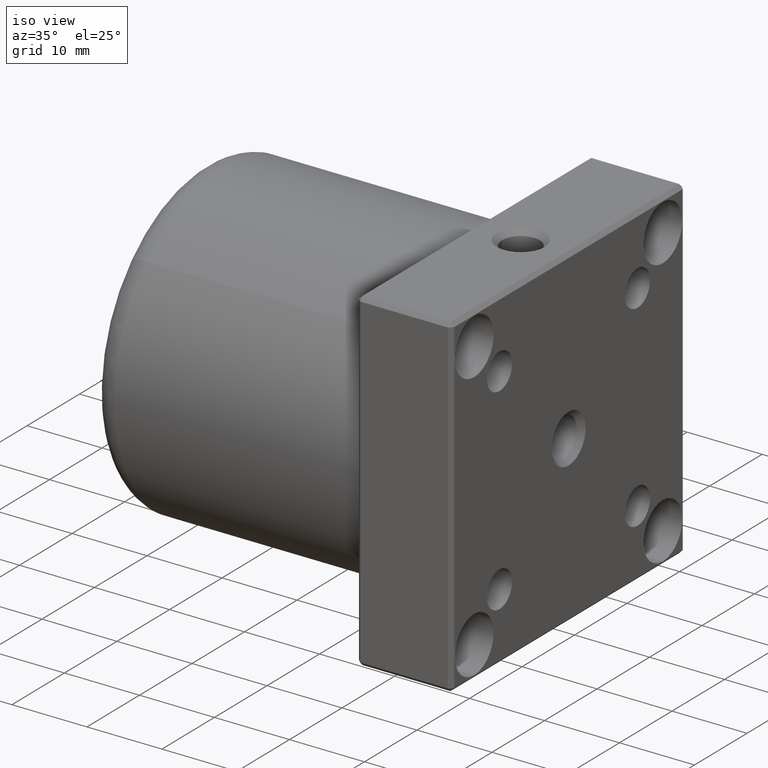
[diagram: clean part render]
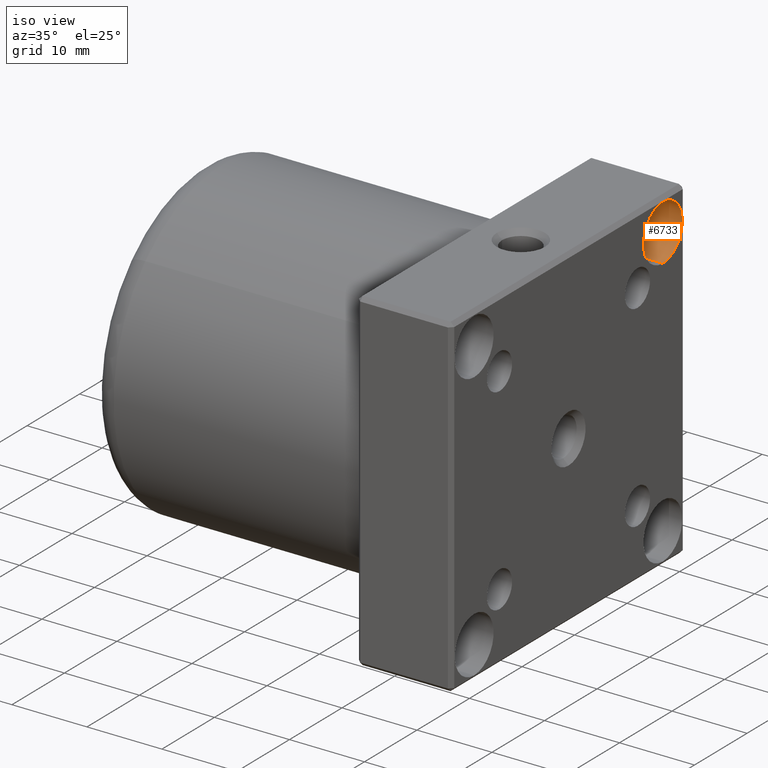
[diagram: same view with one face highlighted and labeled with its STEP entity id]
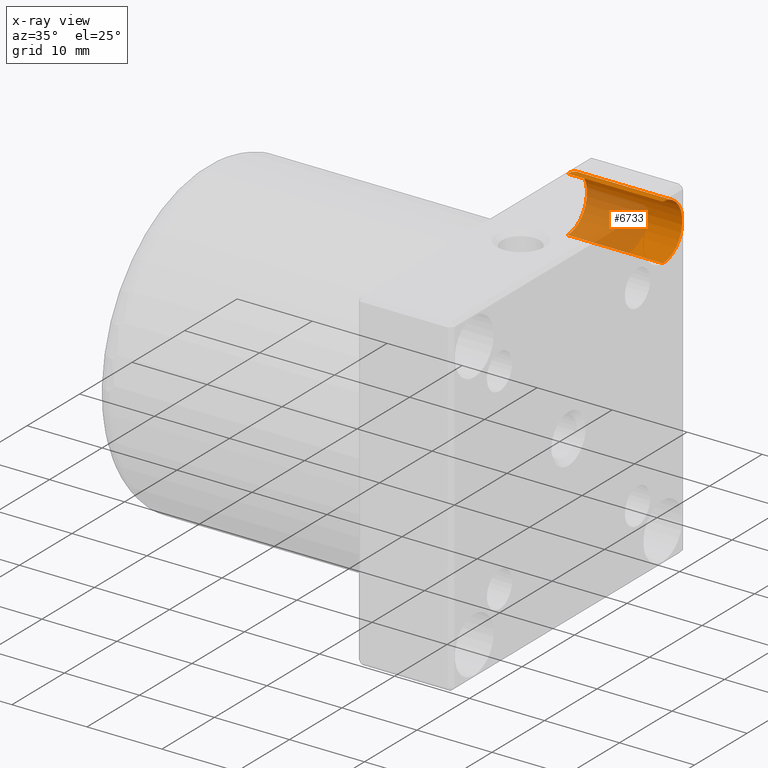
[diagram: x-ray of the same camera — body ghosted, the highlighted face saturated]
A machine part, iso view. The second image highlights one B-rep face of the part: STEP entity #6733.
The next image is the same camera in x-ray: the body ghosted, the highlighted face saturated — about 51% of this face is hidden behind the body in this view.
In plain terms, the highlighted cylindrical surface (edge-blend (fillet) strip) has radius 3.7 mm, axis along (-1, 0, -0).
Its self-contained STEP definition (entity closure, byte-faithful):
#88 = CARTESIAN_POINT ( 'NONE',  ( 36.50000000000000700, 17.96051224213820400, 14.26051224213839700 ) ) ;
#182 = VECTOR ( 'NONE', #305, 1000.000000000000000 ) ;
#305 = DIRECTION ( 'NONE',  ( -1.000000000000000000, 1.036413853914698600E-017, -5.453505792938099400E-017 ) ) ;
#468 = EDGE_CURVE ( 'NONE', #1265, #3286, #6490, .T. ) ;
#1040 = DIRECTION ( 'NONE',  ( -1.000000000000000000, 1.036413853914698600E-017, -5.453505792938099400E-017 ) ) ;
#1102 = CYLINDRICAL_SURFACE ( 'NONE', #9135, 3.700000000000002000 ) ;
#1136 = CIRCLE ( 'NONE', #10945, 3.700000000000002000 ) ;
#1265 = VERTEX_POINT ( 'NONE', #4453 ) ;
#1509 = VECTOR ( 'NONE', #1040, 1000.000000000000000 ) ;
#2001 = CARTESIAN_POINT ( 'NONE',  ( 36.50000000000000700, 17.96051224213820400, 21.66051224213839900 ) ) ;
#2306 = VERTEX_POINT ( 'NONE', #88 ) ;
#2364 = LINE ( 'NONE', #3172, #182 ) ;
#2599 = DIRECTION ( 'NONE',  ( 0.0000000000000000000, 0.0000000000000000000, 1.000000000000000000 ) ) ;
#2897 = CARTESIAN_POINT ( 'NONE',  ( 36.50000000000000700, 17.96051224213820400, 21.66051224213839900 ) ) ;
#3172 = CARTESIAN_POINT ( 'NONE',  ( 36.50000000000000700, 17.96051224213820400, 14.26051224213839700 ) ) ;
#3286 = VERTEX_POINT ( 'NONE', #2001 ) ;
#4177 = EDGE_LOOP ( 'NONE', ( #8069, #8595, #8886, #10409 ) ) ;
#4227 = CIRCLE ( 'NONE', #7353, 3.700000000000002000 ) ;
#4357 = EDGE_CURVE ( 'NONE', #3286, #2306, #1136, .T. ) ;
#4453 = CARTESIAN_POINT ( 'NONE',  ( 49.20000000000000300, 17.96051224213820400, 21.66051224213839900 ) ) ;
#4767 = CARTESIAN_POINT ( 'NONE',  ( 49.20000000000000300, 17.96051224213820400, 17.96051224213839600 ) ) ;
#4958 = EDGE_CURVE ( 'NONE', #7990, #2306, #2364, .T. ) ;
#5394 = DIRECTION ( 'NONE',  ( -1.000000000000000000, 1.036413853914698600E-017, -5.453505792938099400E-017 ) ) ;
#5703 = DIRECTION ( 'NONE',  ( 0.0000000000000000000, 0.0000000000000000000, 1.000000000000000000 ) ) ;
#6284 = DIRECTION ( 'NONE',  ( -1.000000000000000000, 1.036413853914698600E-017, -5.453505792938099400E-017 ) ) ;
#6490 = LINE ( 'NONE', #2897, #1509 ) ;
#6733 = ADVANCED_FACE ( 'NONE', ( #9448 ), #1102, .F. ) ;
#7353 = AXIS2_PLACEMENT_3D ( 'NONE', #4767, #11325, #5703 ) ;
#7990 = VERTEX_POINT ( 'NONE', #10741 ) ;
#8069 = ORIENTED_EDGE ( 'NONE', *, *, #4958, .F. ) ;
#8595 = ORIENTED_EDGE ( 'NONE', *, *, #8783, .F. ) ;
#8783 = EDGE_CURVE ( 'NONE', #1265, #7990, #4227, .T. ) ;
#8886 = ORIENTED_EDGE ( 'NONE', *, *, #468, .T. ) ;
#9116 = CARTESIAN_POINT ( 'NONE',  ( 36.50000000000000700, 17.96051224213820400, 17.96051224213839600 ) ) ;
#9135 = AXIS2_PLACEMENT_3D ( 'NONE', #9116, #6284, #2599 ) ;
#9448 = FACE_OUTER_BOUND ( 'NONE', #4177, .T. ) ;
#10409 = ORIENTED_EDGE ( 'NONE', *, *, #4357, .T. ) ;
#10741 = CARTESIAN_POINT ( 'NONE',  ( 49.20000000000000300, 17.96051224213820400, 14.26051224213839700 ) ) ;
#10945 = AXIS2_PLACEMENT_3D ( 'NONE', #11032, #5394, #11963 ) ;
#11032 = CARTESIAN_POINT ( 'NONE',  ( 36.50000000000000700, 17.96051224213820400, 17.96051224213839600 ) ) ;
#11325 = DIRECTION ( 'NONE',  ( -1.000000000000000000, 1.036413853914698600E-017, -5.453505792938099400E-017 ) ) ;
#11963 = DIRECTION ( 'NONE',  ( 0.0000000000000000000, 0.0000000000000000000, 1.000000000000000000 ) ) ;